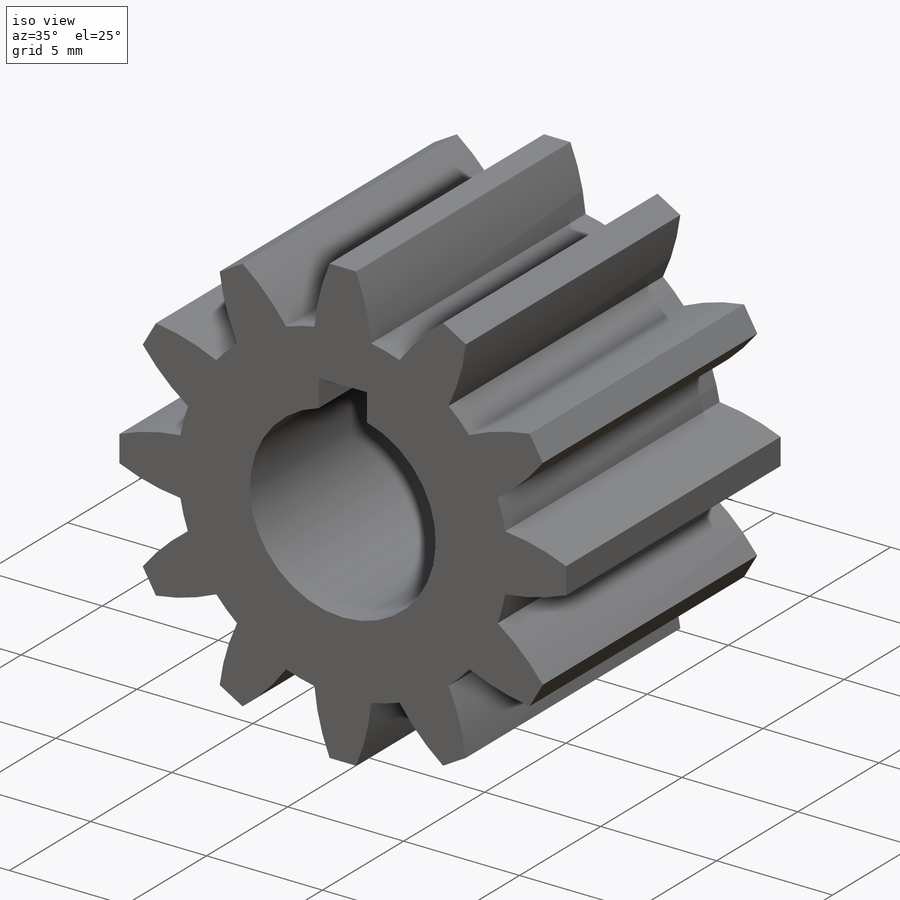
[diagram: iso view]
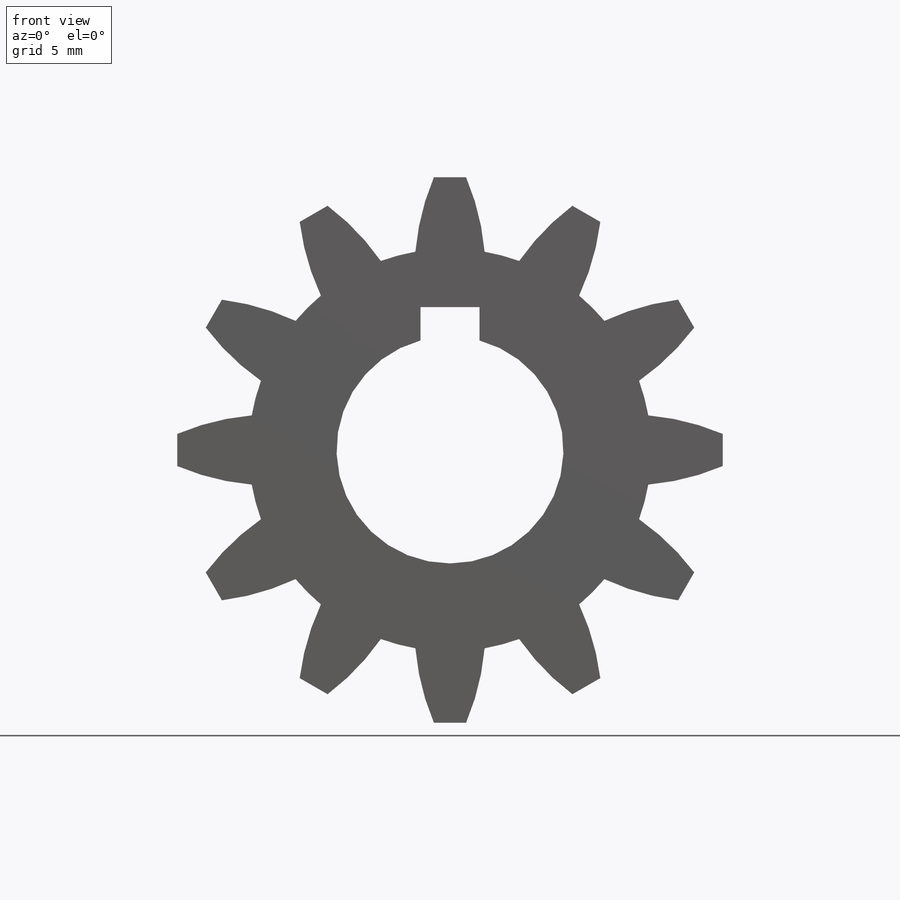
[diagram: front view]
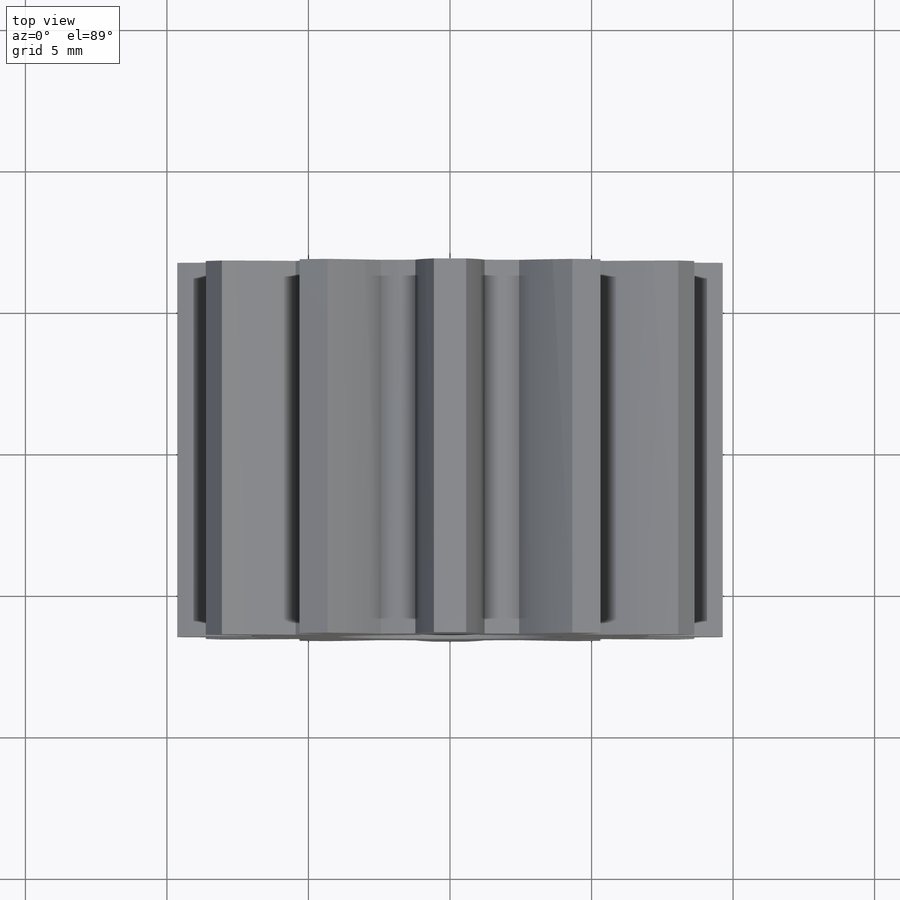
[diagram: top view]
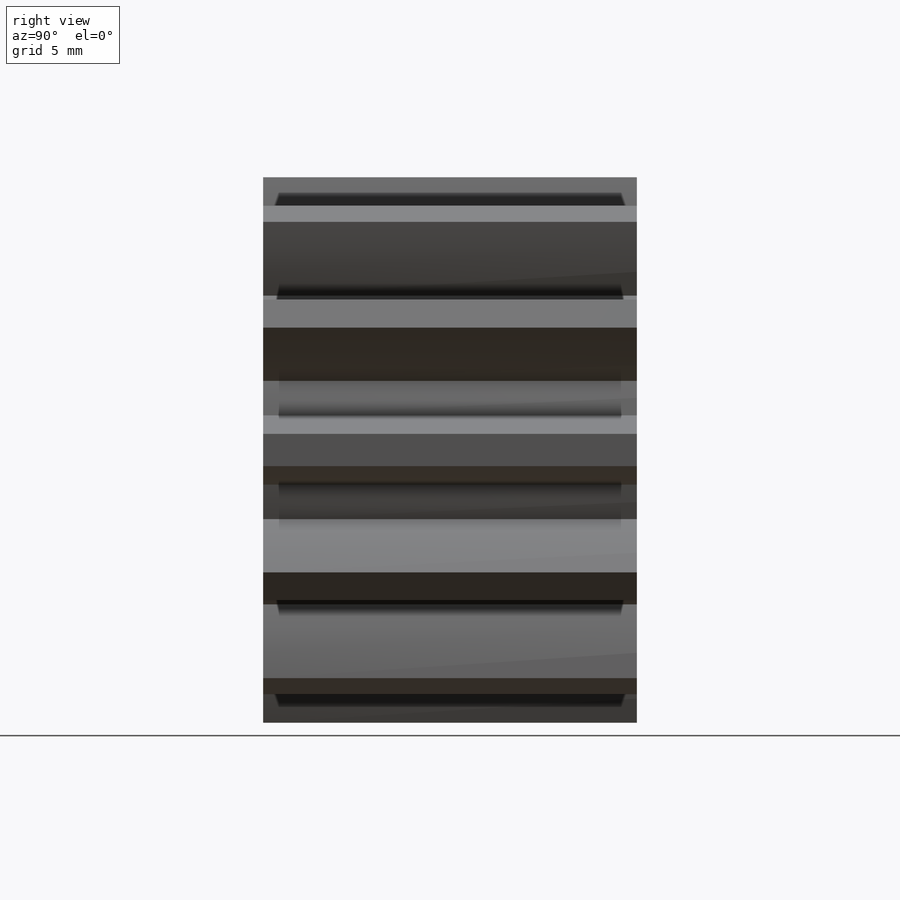
[diagram: right view]
SOLIDWORKS PART (.sldprt)
format: sldprt  version: not decoded by parser v0  size: 305,152 bytes
history: native  units: mm
features: sketch x3, extrude x2, material x1, pattern_circular x1, cut_extrude x1 (+16 scaffold rows collapsed)
feature tree (24):
  scaffold x16  (default folders/planes/origin — collapsed)
  material  "AISI 4130 Steel, normalized at 870C"
  sketch  "Sketch1"  dims[D1=~8.01624mm D2=14.224mm]
  extrude  "Extrude1"  Depth=13.208mm
  sketch  "Sketch2"  dims[c1.D1=9.652mm c1.D2=~8.626951mm c1.D5=7.3025mm c1.D3=~16.071429deg c1.D4=~1.139351mm c1.D6=~1.223214mm c1.D7=~7.395883mm c1.D8=~1.223214mm c1.D9=~7.395883mm c2.D6=~1.223214mm]
  extrude  "Extrude2"  [1 undecoded]
  pattern_circular  "CirPattern1"  Count=12 Angle=360deg
  sketch  "Sketch3"  dims[c1.D1=~9.102616mm c1.D2=~11.185416mm c2.D1=~9.102616mm c2.D2=~14.013168mm c2.D3=~15.192266mm c3.D1=2.0828mm c3.D2=~5.04825mm]
  cut_extrude  "Extrude3"  Depth=65534 ModelUUID=65534
decode coverage: 6 of 7 modeling features carry decoded parameters
note: ~ marks probable driven/reference dimensions
note: 1 parameter value undecoded
note: suppression state not decoded; provenance and decode notes live in map.json
